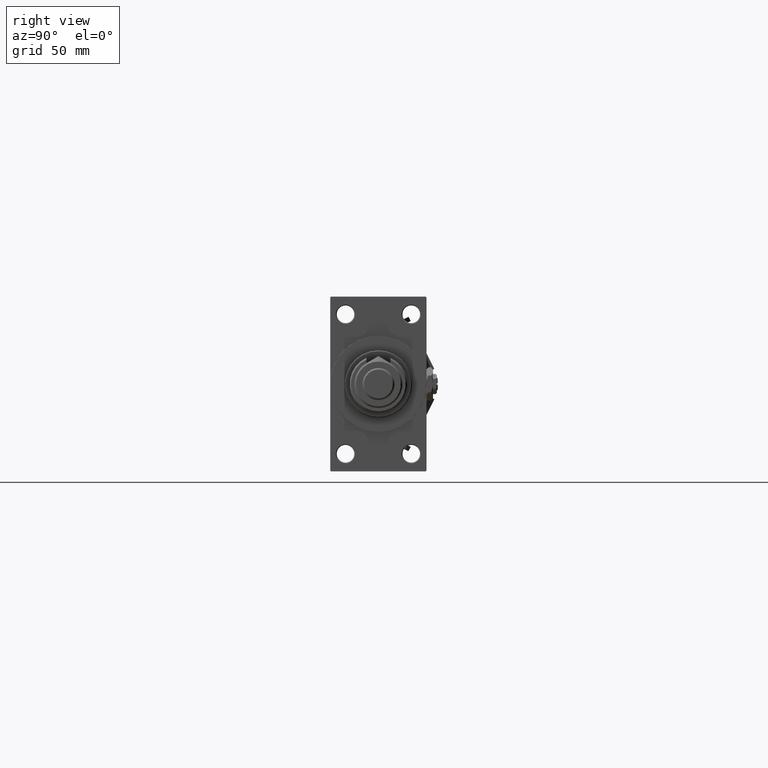
[diagram: clean part render]
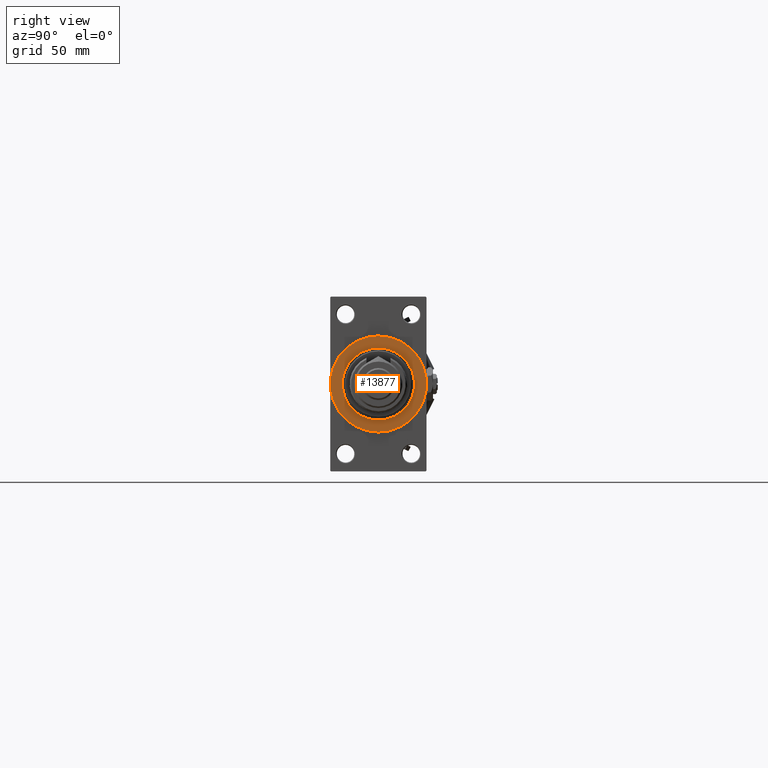
[diagram: same view with one face highlighted and labeled with its STEP entity id]
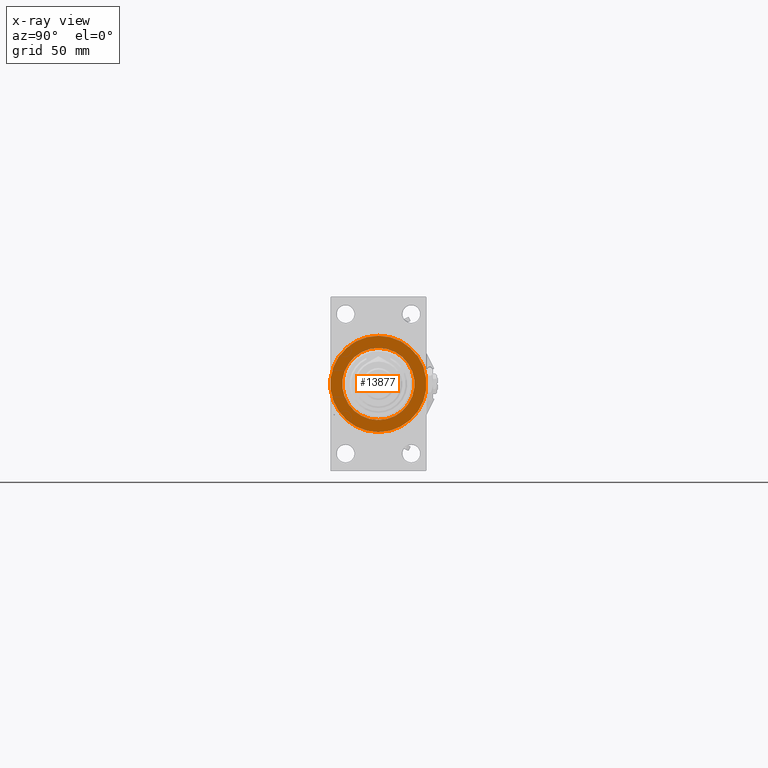
[diagram: x-ray of the same camera — body ghosted, the highlighted face saturated]
A machine part, right view. The second image highlights one B-rep face of the part: STEP entity #13877.
The next image is the same camera in x-ray: the body ghosted, the highlighted face saturated — about 0% of this face is hidden behind the body in this view.
In plain terms, the highlighted planar face has unit normal (1, 0, 0).
Its self-contained STEP definition (entity closure, byte-faithful):
#2881 = DIRECTION ( 'NONE',  ( 1.000000000000000000, 0.000000000000000000, 0.000000000000000000 ) ) ;
#2960 = CIRCLE ( 'NONE', #8936, 22.50000000000000355 ) ;
#3151 = CARTESIAN_POINT ( 'NONE',  ( 317.0000000000000000, 0.000000000000000000, 0.000000000000000000 ) ) ;
#5081 = FACE_BOUND ( 'NONE', #41499, .T. ) ;
#5475 = EDGE_CURVE ( 'NONE', #50421, #18570, #50070, .T. ) ;
#5532 = CARTESIAN_POINT ( 'NONE',  ( 317.0000000000000000, 0.000000000000000000, 0.000000000000000000 ) ) ;
#8879 = EDGE_CURVE ( 'NONE', #18570, #50421, #2960, .T. ) ;
#8936 = AXIS2_PLACEMENT_3D ( 'NONE', #5532, #39167, #18710 ) ;
#13160 = FACE_OUTER_BOUND ( 'NONE', #29425, .T. ) ;
#13552 = ORIENTED_EDGE ( 'NONE', *, *, #5475, .F. ) ;
#13877 = ADVANCED_FACE ( 'NONE', ( #5081, #13160 ), #29562, .T. ) ;
#14135 = VERTEX_POINT ( 'NONE', #51012 ) ;
#15522 = DIRECTION ( 'NONE',  ( 0.000000000000000000, 0.000000000000000000, -1.000000000000000000 ) ) ;
#18570 = VERTEX_POINT ( 'NONE', #20763 ) ;
#18710 = DIRECTION ( 'NONE',  ( 0.000000000000000000, 0.000000000000000000, -1.000000000000000000 ) ) ;
#18958 = EDGE_CURVE ( 'NONE', #21504, #14135, #27297, .T. ) ;
#19662 = CARTESIAN_POINT ( 'NONE',  ( 317.0000000000000000, 0.000000000000000000, 30.00000000000000000 ) ) ;
#20763 = CARTESIAN_POINT ( 'NONE',  ( 317.0000000000000000, 0.000000000000000000, -22.50000000000000355 ) ) ;
#21504 = VERTEX_POINT ( 'NONE', #19662 ) ;
#24357 = CIRCLE ( 'NONE', #51821, 30.00000000000000000 ) ;
#26796 = DIRECTION ( 'NONE',  ( 1.000000000000000000, 0.000000000000000000, 0.000000000000000000 ) ) ;
#26881 = AXIS2_PLACEMENT_3D ( 'NONE', #36971, #37233, #44790 ) ;
#27297 = CIRCLE ( 'NONE', #29841, 30.00000000000000000 ) ;
#28270 = CARTESIAN_POINT ( 'NONE',  ( 317.0000000000000000, 2.755455298081545172E-15, 22.50000000000000355 ) ) ;
#29425 = EDGE_LOOP ( 'NONE', ( #31360, #52936 ) ) ;
#29562 = PLANE ( 'NONE',  #51087 ) ;
#29841 = AXIS2_PLACEMENT_3D ( 'NONE', #46705, #26796, #39441 ) ;
#31360 = ORIENTED_EDGE ( 'NONE', *, *, #18958, .T. ) ;
#31951 = EDGE_CURVE ( 'NONE', #14135, #21504, #24357, .T. ) ;
#34397 = DIRECTION ( 'NONE',  ( 0.000000000000000000, 0.000000000000000000, -1.000000000000000000 ) ) ;
#36971 = CARTESIAN_POINT ( 'NONE',  ( 317.0000000000000000, 0.000000000000000000, 0.000000000000000000 ) ) ;
#37233 = DIRECTION ( 'NONE',  ( 1.000000000000000000, 0.000000000000000000, 0.000000000000000000 ) ) ;
#37905 = CARTESIAN_POINT ( 'NONE',  ( 317.0000000000000000, 0.000000000000000000, 0.000000000000000000 ) ) ;
#38153 = ORIENTED_EDGE ( 'NONE', *, *, #8879, .F. ) ;
#39167 = DIRECTION ( 'NONE',  ( 1.000000000000000000, 0.000000000000000000, 0.000000000000000000 ) ) ;
#39255 = DIRECTION ( 'NONE',  ( 1.000000000000000000, 0.000000000000000000, 0.000000000000000000 ) ) ;
#39441 = DIRECTION ( 'NONE',  ( 0.000000000000000000, 0.000000000000000000, -1.000000000000000000 ) ) ;
#41499 = EDGE_LOOP ( 'NONE', ( #38153, #13552 ) ) ;
#44790 = DIRECTION ( 'NONE',  ( 0.000000000000000000, 0.000000000000000000, -1.000000000000000000 ) ) ;
#46705 = CARTESIAN_POINT ( 'NONE',  ( 317.0000000000000000, 0.000000000000000000, 0.000000000000000000 ) ) ;
#50070 = CIRCLE ( 'NONE', #26881, 22.50000000000000355 ) ;
#50421 = VERTEX_POINT ( 'NONE', #28270 ) ;
#51012 = CARTESIAN_POINT ( 'NONE',  ( 317.0000000000000000, 3.673940397442059178E-15, -30.00000000000000000 ) ) ;
#51087 = AXIS2_PLACEMENT_3D ( 'NONE', #37905, #39255, #34397 ) ;
#51821 = AXIS2_PLACEMENT_3D ( 'NONE', #3151, #2881, #15522 ) ;
#52936 = ORIENTED_EDGE ( 'NONE', *, *, #31951, .T. ) ;